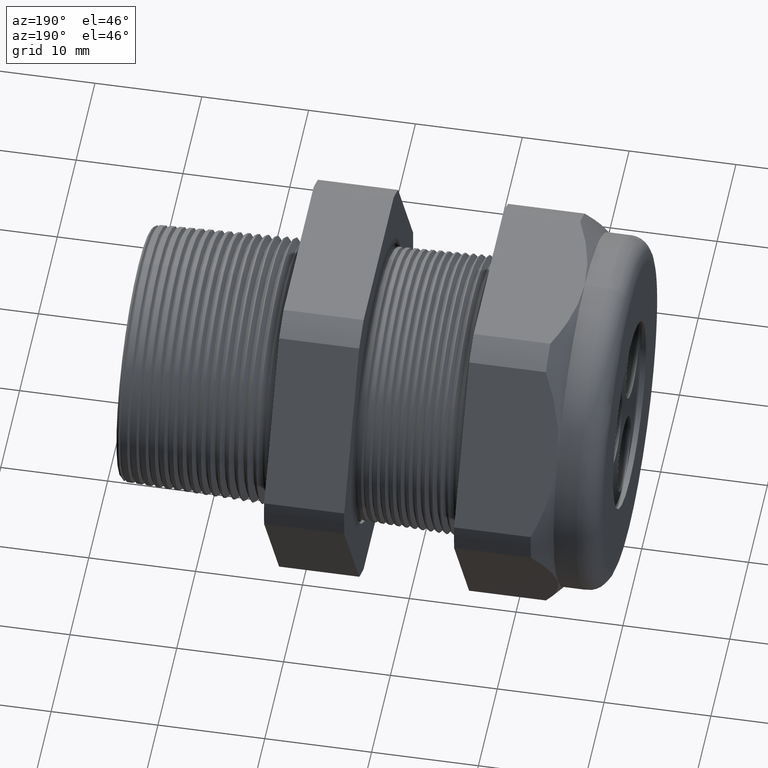
[diagram: clean part render]
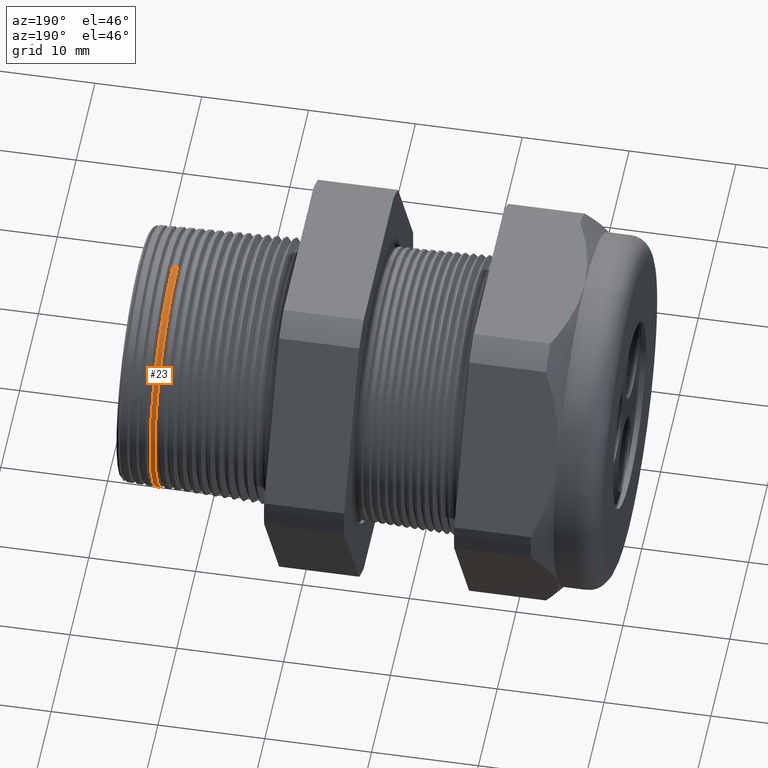
[diagram: same view with one face highlighted and labeled with its STEP entity id]
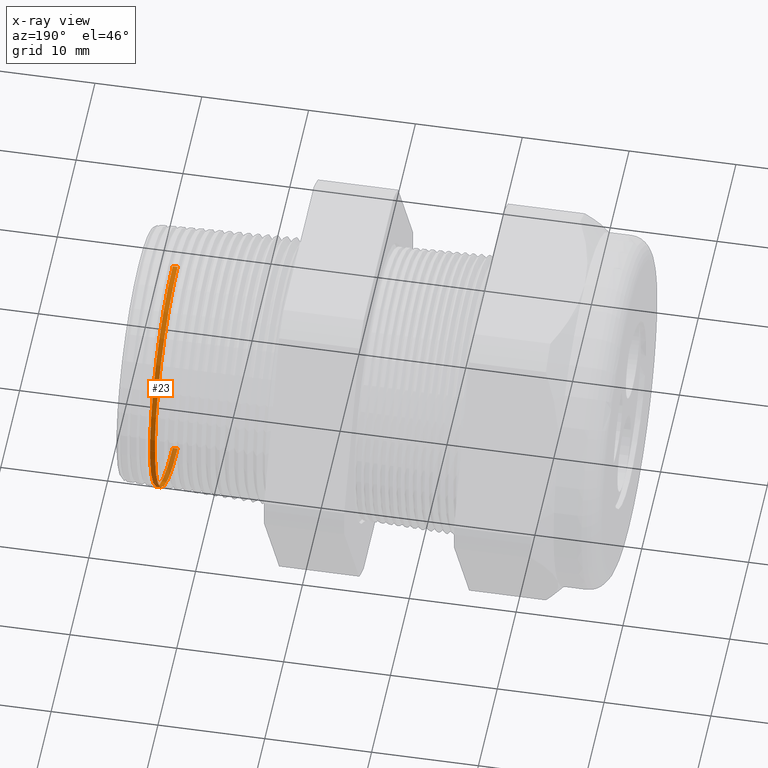
[diagram: x-ray of the same camera — body ghosted, the highlighted face saturated]
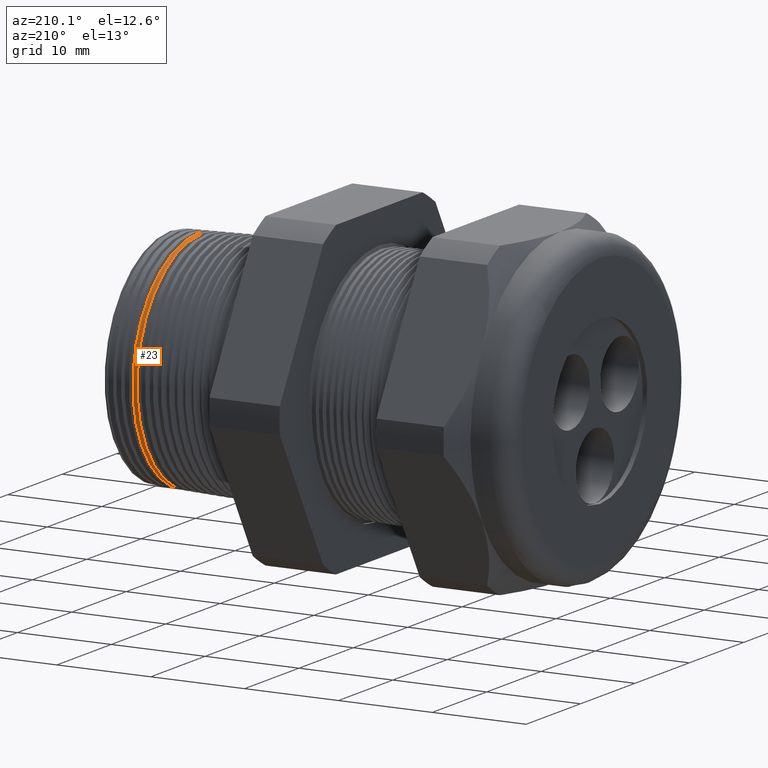
[diagram: same view with one face highlighted and labeled with its STEP entity id]
A machine part, auxiliary view. The second image highlights one B-rep face of the part: STEP entity #23.
The next image is the same camera in x-ray: the body ghosted, the highlighted face saturated — about 13% of this face is hidden behind the body in this view.
A second angle (auxiliary view) of the same face is appended — the face is thin or edge-on in the first view.
In plain terms, the highlighted conical surface has half-angle 2 deg.
Its self-contained STEP definition (entity closure, byte-faithful):
#16 = EDGE_CURVE ( 'NONE', #4028, #4059, #4460, .T. ) ;
#17 = ORIENTED_EDGE ( 'NONE', *, *, #16, .F. ) ;
#18 = ORIENTED_EDGE ( 'NONE', *, *, #4050, .F. ) ;
#19 = ORIENTED_EDGE ( 'NONE', *, *, #20, .T. ) ;
#20 = EDGE_CURVE ( 'NONE', #4025, #4051, #4456, .T. ) ;
#21 = ORIENTED_EDGE ( 'NONE', *, *, #4027, .F. ) ;
#22 = EDGE_LOOP ( 'NONE', ( #21, #19, #18, #17 ) ) ;
#23 = ADVANCED_FACE ( 'NONE', ( #4452 ), #4514, .T. ) ;
#993 = CIRCLE ( 'NONE', #1057, 0.4743549097672443100 ) ;
#994 = CARTESIAN_POINT ( 'NONE',  ( 0.1536081379824685000, 5.813011992654064200E-017, -0.4743549097672443100 ) ) ;
#1053 = CARTESIAN_POINT ( 'NONE',  ( 0.1536081379824685000, 0.0000000000000000000, 0.4743549097672443100 ) ) ;
#1054 = DIRECTION ( 'NONE',  ( 0.0000000000000000000, 0.0000000000000000000, 1.000000000000000000 ) ) ;
#1055 = DIRECTION ( 'NONE',  ( 1.000000000000000000, 0.0000000000000000000, 0.0000000000000000000 ) ) ;
#1056 = CARTESIAN_POINT ( 'NONE',  ( 0.1536081379824685000, 0.0000000000000000000, 0.0000000000000000000 ) ) ;
#1057 = AXIS2_PLACEMENT_3D ( 'NONE', #1056, #1055, #1054 ) ;
#1059 = CARTESIAN_POINT ( 'NONE',  ( 0.1356508413671547200, 0.0000000000000000000, 0.4749819923830425600 ) ) ;
#1070 = CARTESIAN_POINT ( 'NONE',  ( 0.1356508413671547200, 5.816851766245255400E-017, -0.4749819923830425600 ) ) ;
#1071 = DIRECTION ( 'NONE',  ( 0.0000000000000000000, 0.0000000000000000000, -1.000000000000000000 ) ) ;
#1072 = DIRECTION ( 'NONE',  ( -1.000000000000000000, 0.0000000000000000000, 0.0000000000000000000 ) ) ;
#1073 = CARTESIAN_POINT ( 'NONE',  ( 0.1356508413671547200, 0.0000000000000000000, 0.0000000000000000000 ) ) ;
#1074 = AXIS2_PLACEMENT_3D ( 'NONE', #1073, #1072, #1071 ) ;
#1075 = CIRCLE ( 'NONE', #1074, 0.4749819923830425100 ) ;
#4025 = VERTEX_POINT ( 'NONE', #994 ) ;
#4027 = EDGE_CURVE ( 'NONE', #4025, #4028, #993, .T. ) ;
#4028 = VERTEX_POINT ( 'NONE', #1053 ) ;
#4050 = EDGE_CURVE ( 'NONE', #4059, #4051, #1075, .T. ) ;
#4051 = VERTEX_POINT ( 'NONE', #1070 ) ;
#4059 = VERTEX_POINT ( 'NONE', #1059 ) ;
#4452 = FACE_OUTER_BOUND ( 'NONE', #22, .T. ) ;
#4453 = DIRECTION ( 'NONE',  ( -0.9993908270190959800, 4.273955692856267400E-018, -0.03489949670249382900 ) ) ;
#4454 = VECTOR ( 'NONE', #4453, 39.37007874015748100 ) ;
#4455 = CARTESIAN_POINT ( 'NONE',  ( 0.2800000000000000300, 5.755119970073178500E-017, -0.4699412086880983000 ) ) ;
#4456 = LINE ( 'NONE', #4455, #4454 ) ;
#4457 = DIRECTION ( 'NONE',  ( -0.9993908270190959800, 0.0000000000000000000, 0.03489949670249382900 ) ) ;
#4458 = VECTOR ( 'NONE', #4457, 39.37007874015748100 ) ;
#4459 = CARTESIAN_POINT ( 'NONE',  ( 0.2800000000000000300, 0.0000000000000000000, 0.4699412086880983000 ) ) ;
#4460 = LINE ( 'NONE', #4459, #4458 ) ;
#4510 = DIRECTION ( 'NONE',  ( 0.0000000000000000000, 0.0000000000000000000, 1.000000000000000000 ) ) ;
#4511 = DIRECTION ( 'NONE',  ( -1.000000000000000000, 0.0000000000000000000, 0.0000000000000000000 ) ) ;
#4512 = CARTESIAN_POINT ( 'NONE',  ( 0.2800000000000000300, 0.0000000000000000000, 0.0000000000000000000 ) ) ;
#4513 = AXIS2_PLACEMENT_3D ( 'NONE', #4512, #4511, #4510 ) ;
#4514 = CONICAL_SURFACE ( 'NONE', #4513, 0.4699412086880983000, 0.03490658503987944400 ) ;